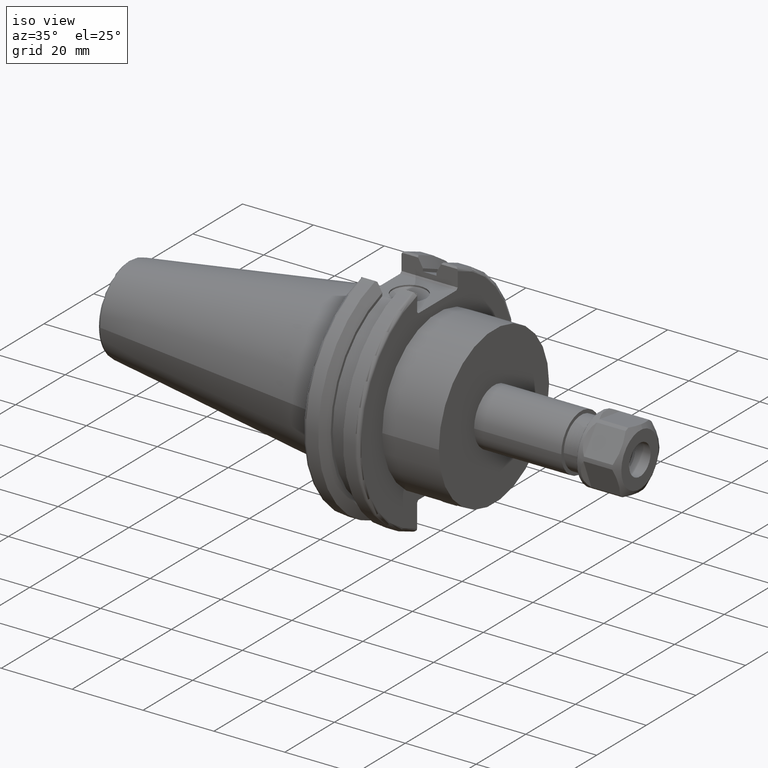
[diagram: clean part render]
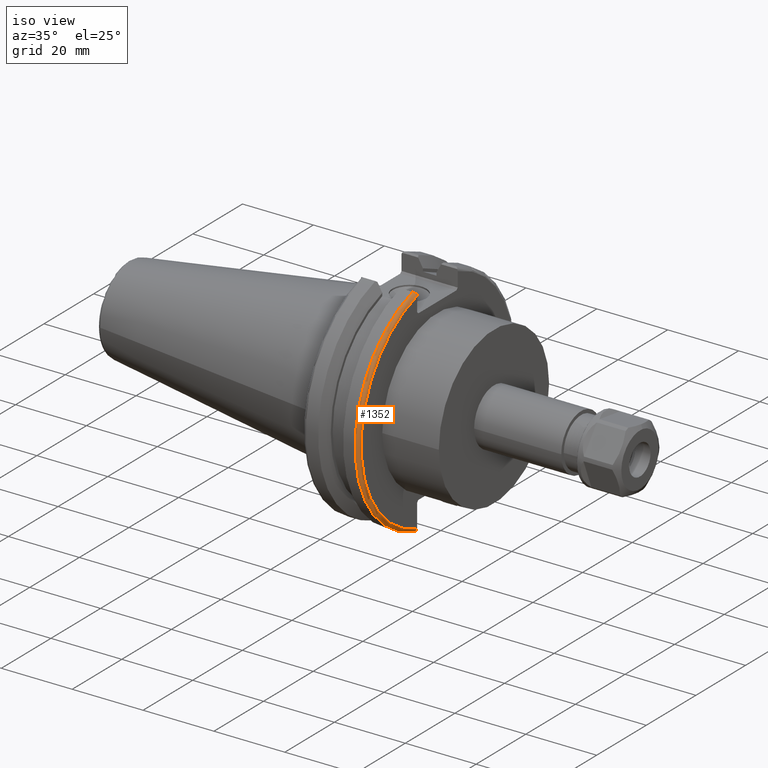
[diagram: same view with one face highlighted and labeled with its STEP entity id]
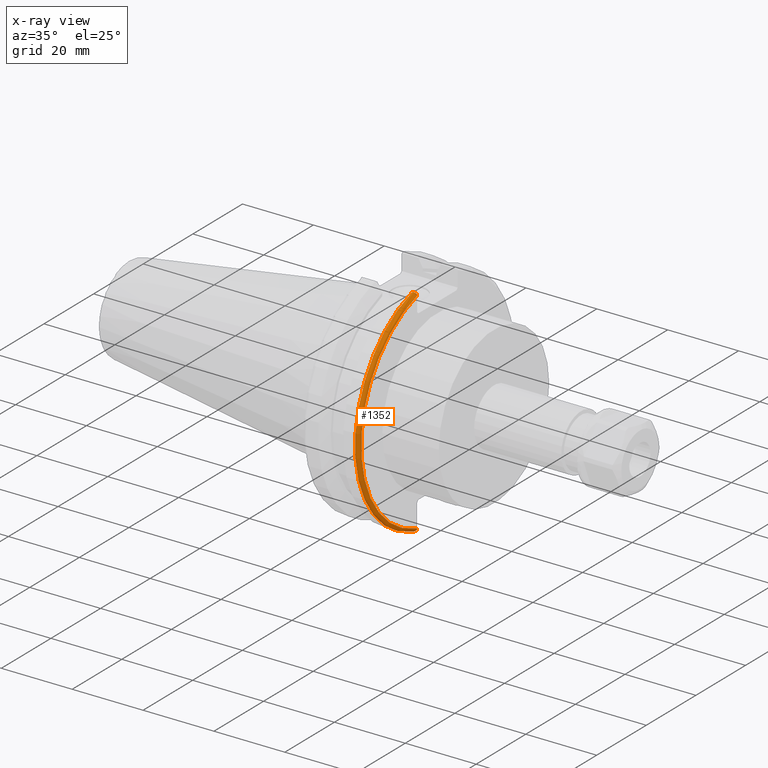
[diagram: x-ray of the same camera — body ghosted, the highlighted face saturated]
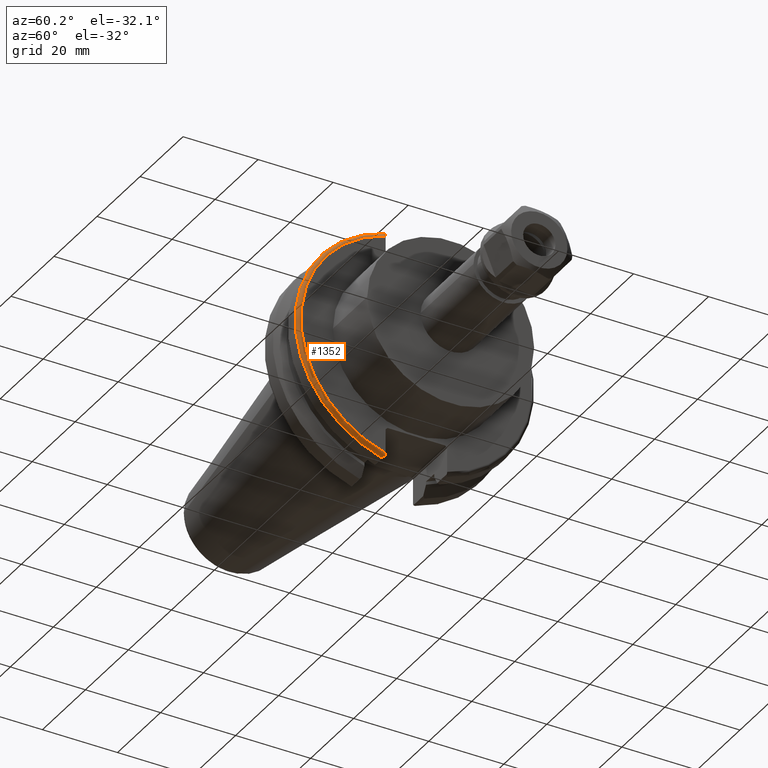
[diagram: same view with one face highlighted and labeled with its STEP entity id]
A machine part, iso view. The second image highlights one B-rep face of the part: STEP entity #1352.
The next image is the same camera in x-ray: the body ghosted, the highlighted face saturated — about 0% of this face is hidden behind the body in this view.
A second angle (auxiliary view) of the same face is appended — the face is thin or edge-on in the first view.
In plain terms, the highlighted toroidal blend (fillet) surface has major radius 30.75 mm and minor (blend) radius 1 mm.
Its self-contained STEP definition (entity closure, byte-faithful):
#62=B_SPLINE_CURVE_WITH_KNOTS('',3,(#2222,#2223,#2224,#2225,#2226,#2227),
 .UNSPECIFIED.,.F.,.F.,(4,2,4),(0.0977383630915687,0.112311108149119,0.150804350305566),
 .UNSPECIFIED.);
#63=B_SPLINE_CURVE_WITH_KNOTS('',3,(#2229,#2230,#2231,#2232,#2233,#2234),
 .UNSPECIFIED.,.F.,.F.,(4,2,4),(0.452741154494497,0.491581665024872,0.505824174364157),
 .UNSPECIFIED.);
#64=B_SPLINE_CURVE_WITH_KNOTS('',3,(#2236,#2237,#2238,#2239,#2240,#2241,
#2242,#2243),.UNSPECIFIED.,.F.,.F.,(4,2,2,4),(-0.104180282751876,-0.072978474246144,
-0.0343524753874979,0.),.UNSPECIFIED.);
#65=B_SPLINE_CURVE_WITH_KNOTS('',3,(#2246,#2247,#2248,#2249,#2250,#2251,
#2252,#2253),.UNSPECIFIED.,.F.,.F.,(4,2,2,4),(0.,0.0343524753874979,0.0729784742461441,
0.104180282751877),.UNSPECIFIED.);
#75=TOROIDAL_SURFACE('',#1523,30.75,1.);
#167=FACE_OUTER_BOUND('',#254,.T.);
#254=EDGE_LOOP('',(#1009,#1010,#1011,#1012,#1013,#1014));
#531=CIRCLE('',#1522,30.75);
#532=CIRCLE('',#1524,31.75);
#621=VERTEX_POINT('',#2209);
#622=VERTEX_POINT('',#2211);
#626=VERTEX_POINT('',#2221);
#627=VERTEX_POINT('',#2228);
#628=VERTEX_POINT('',#2235);
#629=VERTEX_POINT('',#2244);
#769=EDGE_CURVE('',#622,#621,#531,.T.);
#774=EDGE_CURVE('',#626,#622,#62,.T.);
#775=EDGE_CURVE('',#621,#627,#63,.T.);
#776=EDGE_CURVE('',#627,#628,#64,.T.);
#777=EDGE_CURVE('',#628,#629,#532,.T.);
#778=EDGE_CURVE('',#629,#626,#65,.T.);
#1009=ORIENTED_EDGE('',*,*,#774,.T.);
#1010=ORIENTED_EDGE('',*,*,#769,.T.);
#1011=ORIENTED_EDGE('',*,*,#775,.T.);
#1012=ORIENTED_EDGE('',*,*,#776,.T.);
#1013=ORIENTED_EDGE('',*,*,#777,.T.);
#1014=ORIENTED_EDGE('',*,*,#778,.T.);
#1352=ADVANCED_FACE('',(#167),#75,.T.);
#1522=AXIS2_PLACEMENT_3D('',#2212,#1755,#1756);
#1523=AXIS2_PLACEMENT_3D('',#2220,#1761,#1762);
#1524=AXIS2_PLACEMENT_3D('',#2245,#1763,#1764);
#1755=DIRECTION('center_axis',(-1.,0.,0.));
#1756=DIRECTION('ref_axis',(0.,-1.,1.60812264967664E-16));
#1761=DIRECTION('center_axis',(1.,0.,0.));
#1762=DIRECTION('ref_axis',(0.,0.,-1.));
#1763=DIRECTION('center_axis',(1.,0.,0.));
#1764=DIRECTION('ref_axis',(0.,-1.,1.60812264967664E-16));
#2209=CARTESIAN_POINT('',(19.05,-8.19,29.6392712461019));
#2211=CARTESIAN_POINT('',(19.05,-8.19,-29.6392712461019));
#2212=CARTESIAN_POINT('Origin',(19.05,0.,0.));
#2220=CARTESIAN_POINT('Origin',(18.05,0.,0.));
#2221=CARTESIAN_POINT('',(18.9058722749097,-8.19,-30.1755016258903));
#2222=CARTESIAN_POINT('Ctrl Pts',(18.9058722749097,-8.19,-30.1755016258903));
#2223=CARTESIAN_POINT('Ctrl Pts',(18.9324477233044,-8.19,-30.1299319366157));
#2224=CARTESIAN_POINT('Ctrl Pts',(18.9550700364447,-8.19,-30.0829389905409));
#2225=CARTESIAN_POINT('Ctrl Pts',(19.0210043632013,-8.19,-29.9188002007263));
#2226=CARTESIAN_POINT('Ctrl Pts',(19.05,-8.19,-29.76758205329));
#2227=CARTESIAN_POINT('Ctrl Pts',(19.05,-8.19,-29.6392712461019));
#2228=CARTESIAN_POINT('',(18.9058722749097,-8.19,30.1755016258903));
#2229=CARTESIAN_POINT('Ctrl Pts',(19.05,-8.19,29.6392712461019));
#2230=CARTESIAN_POINT('Ctrl Pts',(19.05,-8.19,29.7687396145364));
#2231=CARTESIAN_POINT('Ctrl Pts',(19.0204855670831,-8.19,29.9212724384851));
#2232=CARTESIAN_POINT('Ctrl Pts',(18.9539643471756,-8.19,30.0852355256475));
#2233=CARTESIAN_POINT('Ctrl Pts',(18.9318163728133,-8.19,30.131014531546));
#2234=CARTESIAN_POINT('Ctrl Pts',(18.9058722749097,-8.19,30.1755016258903));
#2235=CARTESIAN_POINT('',(18.05,-8.67204822802685,30.5427254764662));
#2236=CARTESIAN_POINT('Ctrl Pts',(18.9058722749097,-8.19,30.1755016258903));
#2237=CARTESIAN_POINT('Ctrl Pts',(18.8574463042989,-8.2703682833078,30.2367261024977));
#2238=CARTESIAN_POINT('Ctrl Pts',(18.7926702662319,-8.34909446036477,30.2966996242308));
#2239=CARTESIAN_POINT('Ctrl Pts',(18.6396724190507,-8.48862804755883,30.4029961692546));
#2240=CARTESIAN_POINT('Ctrl Pts',(18.5184414294771,-8.56482138642532,30.4610401774263));
#2241=CARTESIAN_POINT('Ctrl Pts',(18.2983170433775,-8.6471881193939,30.5237870709558));
#2242=CARTESIAN_POINT('Ctrl Pts',(18.1645082512917,-8.67204822802685,30.5427254764662));
#2243=CARTESIAN_POINT('Ctrl Pts',(18.05,-8.67204822802685,30.5427254764662));
#2244=CARTESIAN_POINT('',(18.05,-8.67204822802685,-30.5427254764662));
#2245=CARTESIAN_POINT('Origin',(18.05,0.,0.));
#2246=CARTESIAN_POINT('Ctrl Pts',(18.05,-8.67204822802686,-30.5427254764662));
#2247=CARTESIAN_POINT('Ctrl Pts',(18.1645082512917,-8.67204822802686,-30.5427254764662));
#2248=CARTESIAN_POINT('Ctrl Pts',(18.2983170433775,-8.6471881193939,-30.5237870709558));
#2249=CARTESIAN_POINT('Ctrl Pts',(18.5184414294771,-8.56482138642532,-30.4610401774263));
#2250=CARTESIAN_POINT('Ctrl Pts',(18.6396724190507,-8.48862804755884,-30.4029961692546));
#2251=CARTESIAN_POINT('Ctrl Pts',(18.7926702662319,-8.34909446036477,-30.2966996242308));
#2252=CARTESIAN_POINT('Ctrl Pts',(18.8574463042989,-8.27036828330781,-30.2367261024977));
#2253=CARTESIAN_POINT('Ctrl Pts',(18.9058722749097,-8.19,-30.1755016258903));